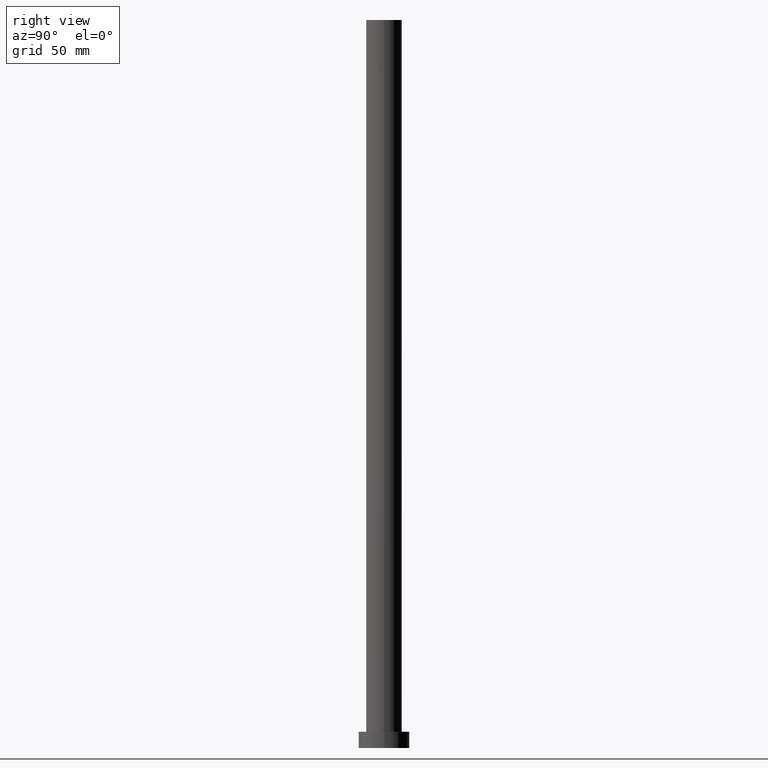
[diagram: clean part render]
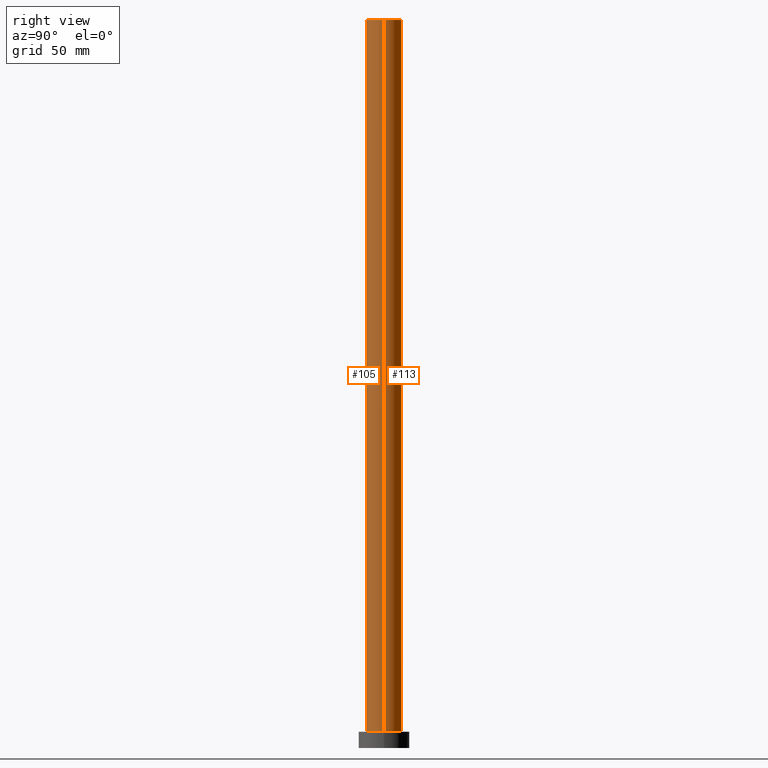
[diagram: same view with one multi-face feature highlighted, each face labeled with its STEP entity id]
A machine part, right view. The highlighted faces form ONE feature: a constant-radius fillet chain: 2 tangent blend faces with common blend radius 7.75 mm. The faces share edges in the B-rep.
Their STEP definitions:
[1] entity #105 (Cylinder):
#7 = AXIS2_PLACEMENT_3D ( 'NONE', #74, #78, #198 ) ;
#16 = LINE ( 'NONE', #253, #222 ) ;
#19 = CARTESIAN_POINT ( 'NONE',  ( 7.750000000000000000, 9.491012693391987787E-16, 7.000000000000000000 ) ) ;
#22 = DIRECTION ( 'NONE',  ( -0.000000000000000000, -0.000000000000000000, -1.000000000000000000 ) ) ;
#27 = AXIS2_PLACEMENT_3D ( 'NONE', #202, #22, #255 ) ;
#35 = CIRCLE ( 'NONE', #250, 7.750000000000000000 ) ;
#46 = DIRECTION ( 'NONE',  ( -0.000000000000000000, -0.000000000000000000, -1.000000000000000000 ) ) ;
#57 = VERTEX_POINT ( 'NONE', #212 ) ;
#73 = ORIENTED_EDGE ( 'NONE', *, *, #98, .F. ) ;
#74 = CARTESIAN_POINT ( 'NONE',  ( 0.000000000000000000, 0.000000000000000000, 7.000000000000000000 ) ) ;
#76 = CARTESIAN_POINT ( 'NONE',  ( 7.750000000000000000, 9.491012693391987787E-16, 315.0000000000000000 ) ) ;
#78 = DIRECTION ( 'NONE',  ( 0.000000000000000000, 0.000000000000000000, 1.000000000000000000 ) ) ;
#92 = VERTEX_POINT ( 'NONE', #19 ) ;
#94 = VERTEX_POINT ( 'NONE', #100 ) ;
#98 = EDGE_CURVE ( 'NONE', #139, #92, #180, .T. ) ;
#100 = CARTESIAN_POINT ( 'NONE',  ( -7.750000000000000000, 0.000000000000000000, 315.0000000000000000 ) ) ;
#103 = CARTESIAN_POINT ( 'NONE',  ( 7.750000000000000000, 9.491012693391987787E-16, 315.0000000000000000 ) ) ;
#105 = ADVANCED_FACE ( 'NONE', ( #178 ), #118, .T. ) ;
#118 = CYLINDRICAL_SURFACE ( 'NONE', #27, 7.750000000000000000 ) ;
#121 = DIRECTION ( 'NONE',  ( 0.000000000000000000, 0.000000000000000000, 1.000000000000000000 ) ) ;
#123 = DIRECTION ( 'NONE',  ( -0.000000000000000000, -0.000000000000000000, -1.000000000000000000 ) ) ;
#126 = VECTOR ( 'NONE', #123, 1000.000000000000000 ) ;
#137 = EDGE_CURVE ( 'NONE', #94, #57, #16, .T. ) ;
#139 = VERTEX_POINT ( 'NONE', #76 ) ;
#160 = DIRECTION ( 'NONE',  ( 1.000000000000000000, 0.000000000000000000, 0.000000000000000000 ) ) ;
#178 = FACE_OUTER_BOUND ( 'NONE', #190, .T. ) ;
#180 = LINE ( 'NONE', #103, #126 ) ;
#182 = EDGE_CURVE ( 'NONE', #57, #92, #238, .T. ) ;
#190 = EDGE_LOOP ( 'NONE', ( #73, #211, #227, #245 ) ) ;
#198 = DIRECTION ( 'NONE',  ( 1.000000000000000000, 0.000000000000000000, 0.000000000000000000 ) ) ;
#202 = CARTESIAN_POINT ( 'NONE',  ( 0.000000000000000000, 0.000000000000000000, 315.0000000000000000 ) ) ;
#211 = ORIENTED_EDGE ( 'NONE', *, *, #217, .F. ) ;
#212 = CARTESIAN_POINT ( 'NONE',  ( -7.750000000000000000, 0.000000000000000000, 7.000000000000000000 ) ) ;
#217 = EDGE_CURVE ( 'NONE', #94, #139, #35, .T. ) ;
#222 = VECTOR ( 'NONE', #46, 1000.000000000000000 ) ;
#227 = ORIENTED_EDGE ( 'NONE', *, *, #137, .T. ) ;
#238 = CIRCLE ( 'NONE', #7, 7.750000000000000000 ) ;
#245 = ORIENTED_EDGE ( 'NONE', *, *, #182, .T. ) ;
#250 = AXIS2_PLACEMENT_3D ( 'NONE', #254, #121, #160 ) ;
#253 = CARTESIAN_POINT ( 'NONE',  ( -7.750000000000000000, 0.000000000000000000, 315.0000000000000000 ) ) ;
#254 = CARTESIAN_POINT ( 'NONE',  ( 0.000000000000000000, 0.000000000000000000, 315.0000000000000000 ) ) ;
#255 = DIRECTION ( 'NONE',  ( -1.000000000000000000, 0.000000000000000000, 0.000000000000000000 ) ) ;
[2] entity #113 (Cylinder):
#4 = CIRCLE ( 'NONE', #31, 7.750000000000000000 ) ;
#16 = LINE ( 'NONE', #253, #222 ) ;
#19 = CARTESIAN_POINT ( 'NONE',  ( 7.750000000000000000, 9.491012693391987787E-16, 7.000000000000000000 ) ) ;
#21 = CARTESIAN_POINT ( 'NONE',  ( 0.000000000000000000, 0.000000000000000000, 315.0000000000000000 ) ) ;
#26 = DIRECTION ( 'NONE',  ( 1.000000000000000000, 0.000000000000000000, 0.000000000000000000 ) ) ;
#31 = AXIS2_PLACEMENT_3D ( 'NONE', #21, #102, #215 ) ;
#33 = ORIENTED_EDGE ( 'NONE', *, *, #242, .F. ) ;
#38 = ORIENTED_EDGE ( 'NONE', *, *, #98, .T. ) ;
#46 = DIRECTION ( 'NONE',  ( -0.000000000000000000, -0.000000000000000000, -1.000000000000000000 ) ) ;
#52 = CIRCLE ( 'NONE', #194, 7.750000000000000000 ) ;
#57 = VERTEX_POINT ( 'NONE', #212 ) ;
#66 = CARTESIAN_POINT ( 'NONE',  ( 0.000000000000000000, 0.000000000000000000, 7.000000000000000000 ) ) ;
#76 = CARTESIAN_POINT ( 'NONE',  ( 7.750000000000000000, 9.491012693391987787E-16, 315.0000000000000000 ) ) ;
#79 = FACE_OUTER_BOUND ( 'NONE', #209, .T. ) ;
#92 = VERTEX_POINT ( 'NONE', #19 ) ;
#94 = VERTEX_POINT ( 'NONE', #100 ) ;
#98 = EDGE_CURVE ( 'NONE', #139, #92, #180, .T. ) ;
#100 = CARTESIAN_POINT ( 'NONE',  ( -7.750000000000000000, 0.000000000000000000, 315.0000000000000000 ) ) ;
#102 = DIRECTION ( 'NONE',  ( 0.000000000000000000, 0.000000000000000000, 1.000000000000000000 ) ) ;
#103 = CARTESIAN_POINT ( 'NONE',  ( 7.750000000000000000, 9.491012693391987787E-16, 315.0000000000000000 ) ) ;
#109 = CARTESIAN_POINT ( 'NONE',  ( 0.000000000000000000, 0.000000000000000000, 315.0000000000000000 ) ) ;
#113 = ADVANCED_FACE ( 'NONE', ( #79 ), #236, .T. ) ;
#120 = EDGE_CURVE ( 'NONE', #92, #57, #52, .T. ) ;
#123 = DIRECTION ( 'NONE',  ( -0.000000000000000000, -0.000000000000000000, -1.000000000000000000 ) ) ;
#126 = VECTOR ( 'NONE', #123, 1000.000000000000000 ) ;
#137 = EDGE_CURVE ( 'NONE', #94, #57, #16, .T. ) ;
#139 = VERTEX_POINT ( 'NONE', #76 ) ;
#170 = AXIS2_PLACEMENT_3D ( 'NONE', #109, #185, #204 ) ;
#172 = ORIENTED_EDGE ( 'NONE', *, *, #137, .F. ) ;
#180 = LINE ( 'NONE', #103, #126 ) ;
#185 = DIRECTION ( 'NONE',  ( -0.000000000000000000, -0.000000000000000000, -1.000000000000000000 ) ) ;
#188 = DIRECTION ( 'NONE',  ( 0.000000000000000000, 0.000000000000000000, 1.000000000000000000 ) ) ;
#194 = AXIS2_PLACEMENT_3D ( 'NONE', #66, #188, #26 ) ;
#204 = DIRECTION ( 'NONE',  ( -1.000000000000000000, 0.000000000000000000, 0.000000000000000000 ) ) ;
#209 = EDGE_LOOP ( 'NONE', ( #33, #38, #252, #172 ) ) ;
#212 = CARTESIAN_POINT ( 'NONE',  ( -7.750000000000000000, 0.000000000000000000, 7.000000000000000000 ) ) ;
#215 = DIRECTION ( 'NONE',  ( 1.000000000000000000, 0.000000000000000000, 0.000000000000000000 ) ) ;
#222 = VECTOR ( 'NONE', #46, 1000.000000000000000 ) ;
#236 = CYLINDRICAL_SURFACE ( 'NONE', #170, 7.750000000000000000 ) ;
#242 = EDGE_CURVE ( 'NONE', #139, #94, #4, .T. ) ;
#252 = ORIENTED_EDGE ( 'NONE', *, *, #120, .T. ) ;
#253 = CARTESIAN_POINT ( 'NONE',  ( -7.750000000000000000, 0.000000000000000000, 315.0000000000000000 ) ) ;